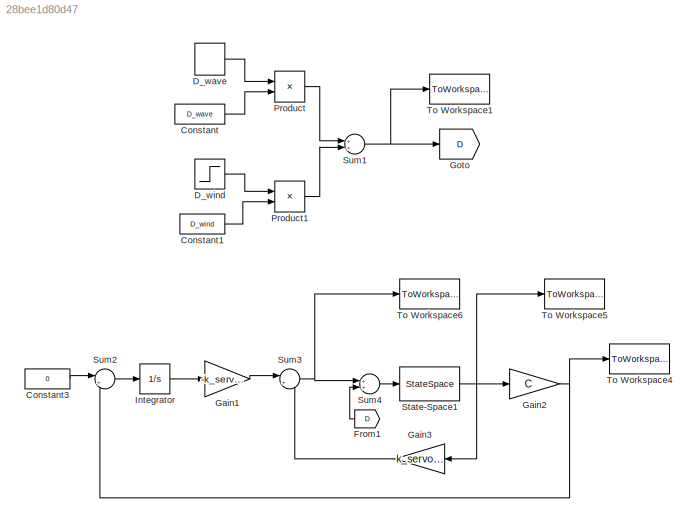
MODEL slx_28bee1d80d47
KIND model
CONFIG AbsTol = auto
CONFIG EnableMultiTasking = off
CONFIG FixedStep = auto
CONFIG MaxStep = auto
CONFIG MinStep = auto
CONFIG RelTol = 1e-3
CONFIG SampleTimeConstraint = Unconstrained
CONFIG Solver = VariableStepAuto
CONFIG SolverName = VariableStepAuto
CONFIG StartTime = 0.0
CONFIG StopTime = 50
BLOCK [Constant] Constant
  Value = D_wave
BLOCK [Constant] Constant1
  Value = D_wind
BLOCK [Constant] Constant3
  Value = 0
BLOCK [DiscretePulseGenerator] D_wave
  Period = 1
  Ports = [0, 1]
  PulseType = Time based
  PulseWidth = 10
BLOCK [Step] D_wind
  SampleTime = 0
  Time = 10
BLOCK [From] From1
  GotoTag = D
BLOCK [Gain] Gain1
  Gain = -k_servo(3)
  Multiplication = Matrix(K*u)
  OutDataTypeStr = Inherit: Inherit via internal rule
  ParamDataTypeStr = Inherit: Inherit via internal rule
  SaturateOnIntegerOverflow = off
BLOCK [Gain] Gain2
  Gain = C
  Multiplication = Matrix(K*u)
  OutDataTypeStr = Inherit: Inherit via internal rule
  ParamDataTypeStr = Inherit: Inherit via internal rule
  SaturateOnIntegerOverflow = off
BLOCK [Gain] Gain3
  Gain = k_servo(1:2)
  Multiplication = Matrix(K*u)
  OutDataTypeStr = Inherit: Inherit via internal rule
  ParamDataTypeStr = Inherit: Inherit via internal rule
  SaturateOnIntegerOverflow = off
BLOCK [Goto] Goto
  GotoTag = D
BLOCK [Integrator] Integrator
  Ports = [1, 1]
BLOCK [Product] Product
  InputSameDT = off
  OutDataTypeStr = Inherit: Inherit via internal rule
  Ports = [2, 1]
  RndMeth = Floor
  SaturateOnIntegerOverflow = off
BLOCK [Product] Product1
  InputSameDT = off
  OutDataTypeStr = Inherit: Inherit via internal rule
  Ports = [2, 1]
  RndMeth = Floor
  SaturateOnIntegerOverflow = off
BLOCK [StateSpace] State-Space1
  A = [0,1; -w_n^2, -2*w_n*zeta]
  B = [0; 2*w_n^2]
  C = eye(2)
  D = [0;0]
  InitialCondition = x_init
  Ports = [1, 1]
BLOCK [Sum] Sum1
  InputSameDT = off
  OutDataTypeStr = Inherit: Inherit via internal rule
  Ports = [2, 1]
  SaturateOnIntegerOverflow = off
BLOCK [Sum] Sum2
  IconShape = round
  InputSameDT = off
  Inputs = |+-
  OutDataTypeStr = Inherit: Inherit via internal rule
  Ports = [2, 1]
  SaturateOnIntegerOverflow = off
BLOCK [Sum] Sum3
  IconShape = round
  InputSameDT = off
  Inputs = |+-
  OutDataTypeStr = Inherit: Inherit via internal rule
  Ports = [2, 1]
  SaturateOnIntegerOverflow = off
BLOCK [Sum] Sum4
  InputSameDT = off
  OutDataTypeStr = Inherit: Inherit via internal rule
  Ports = [2, 1]
  SaturateOnIntegerOverflow = off
BLOCK [ToWorkspace] To Workspace1
  FixptAsFi = on
  MaxDataPoints = inf
  Ports = [1]
  SampleTime = -1
  SaveFormat = Structure With Time
  VariableName = D_t
BLOCK [ToWorkspace] To Workspace4
  FixptAsFi = on
  MaxDataPoints = inf
  Ports = [1]
  SampleTime = -1
  SaveFormat = Structure With Time
  VariableName = Y_gyro
BLOCK [ToWorkspace] To Workspace5
  FixptAsFi = on
  MaxDataPoints = inf
  Ports = [1]
  SampleTime = -1
  SaveFormat = Structure With Time
  VariableName = x_t
BLOCK [ToWorkspace] To Workspace6
  FixptAsFi = on
  MaxDataPoints = inf
  Ports = [1]
  SampleTime = -1
  SaveFormat = Structure With Time
  VariableName = u_t
LINE Constant1:1 -> Product1:2
LINE Constant3:1 -> Sum2:1
LINE Constant:1 -> Product:2
LINE D_wave:1 -> Product:1
LINE D_wind:1 -> Product1:1
LINE From1:1 -> Sum4:2
LINE Gain1:1 -> Sum3:1
NET Gain2:1 -> Sum2:2, To Workspace4:1
LINE Gain3:1 -> Sum3:2
LINE Integrator:1 -> Gain1:1
LINE Product1:1 -> Sum1:2
LINE Product:1 -> Sum1:1
NET State-Space1:1 -> Gain2:1, Gain3:1, To Workspace5:1
NET Sum1:1 -> Goto:1, To Workspace1:1
LINE Sum2:1 -> Integrator:1
NET Sum3:1 -> Sum4:1, To Workspace6:1
LINE Sum4:1 -> State-Space1:1
note: NET lines group one-source signal fan-out (src -> all destinations, sorted); 1:1 wires keep LINE
